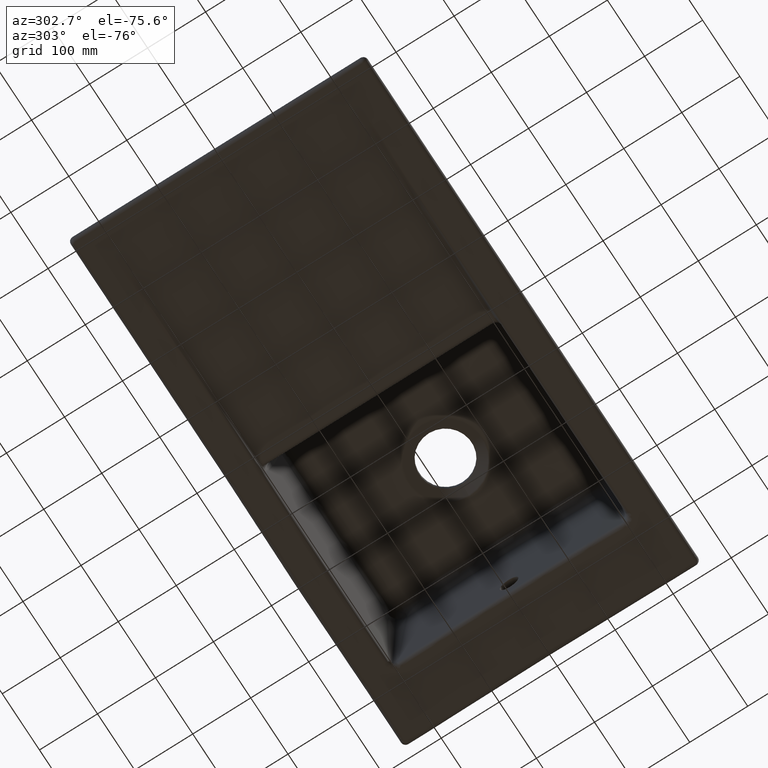
[diagram: clean part render]
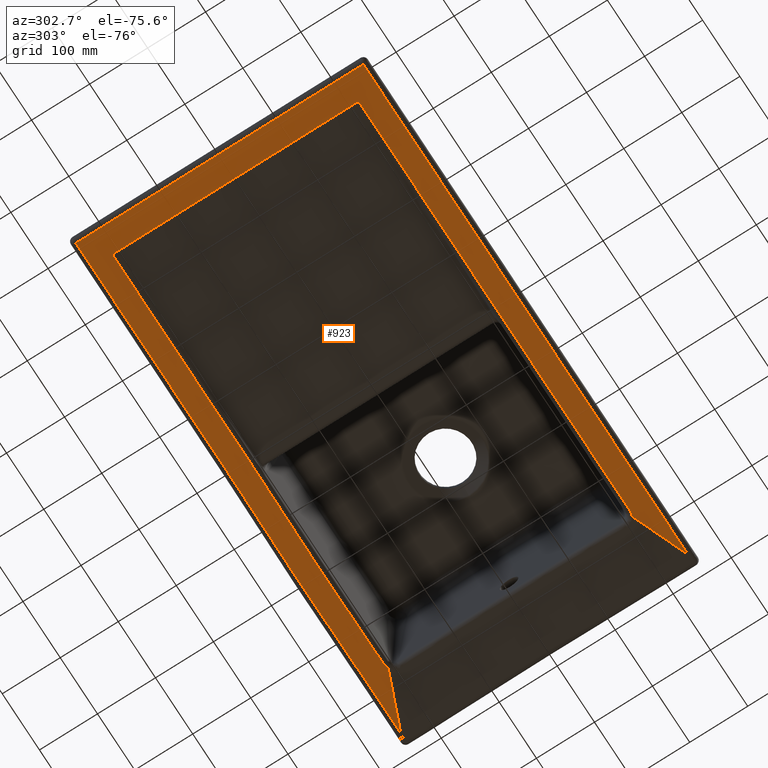
[diagram: same view with one face highlighted and labeled with its STEP entity id]
A machine part, auxiliary view. The second image highlights one B-rep face of the part: STEP entity #923.
In plain terms, the highlighted planar face has unit normal (0, 0, -1).
Its self-contained STEP definition (entity closure, byte-faithful):
#403=LINE('',#11913,#493);
#405=LINE('',#11919,#495);
#408=LINE('',#11937,#498);
#410=LINE('',#12379,#500);
#493=VECTOR('',#4963,1.);
#495=VECTOR('',#4969,1.);
#498=VECTOR('',#4974,1.);
#500=VECTOR('',#4996,1.);
#923=ADVANCED_FACE('',(#1226),#1001,.T.);
#1001=PLANE('',#4444);
#1226=FACE_OUTER_BOUND('',#1504,.T.);
#1504=EDGE_LOOP('',(#2618,#2619,#2620,#2621,#2622,#2623,#2624,#2625,#2626,
#2627,#2628,#2629,#2630,#2631,#2632,#2633,#2634,#2635,#2636,#2637));
#2618=ORIENTED_EDGE('',*,*,#3779,.F.);
#2619=ORIENTED_EDGE('',*,*,#3690,.T.);
#2620=ORIENTED_EDGE('',*,*,#3693,.T.);
#2621=ORIENTED_EDGE('',*,*,#3697,.T.);
#2622=ORIENTED_EDGE('',*,*,#3700,.T.);
#2623=ORIENTED_EDGE('',*,*,#3703,.T.);
#2624=ORIENTED_EDGE('',*,*,#3706,.T.);
#2625=ORIENTED_EDGE('',*,*,#3709,.T.);
#2626=ORIENTED_EDGE('',*,*,#3780,.F.);
#2627=ORIENTED_EDGE('',*,*,#3711,.T.);
#2628=ORIENTED_EDGE('',*,*,#3715,.T.);
#2629=ORIENTED_EDGE('',*,*,#3717,.T.);
#2630=ORIENTED_EDGE('',*,*,#3719,.T.);
#2631=ORIENTED_EDGE('',*,*,#3720,.T.);
#2632=ORIENTED_EDGE('',*,*,#3722,.T.);
#2633=ORIENTED_EDGE('',*,*,#3725,.T.);
#2634=ORIENTED_EDGE('',*,*,#3724,.T.);
#2635=ORIENTED_EDGE('',*,*,#3726,.T.);
#2636=ORIENTED_EDGE('',*,*,#3728,.T.);
#2637=ORIENTED_EDGE('',*,*,#3736,.T.);
#3095=VERTEX_POINT('',#11465);
#3100=VERTEX_POINT('',#11475);
#3125=VERTEX_POINT('',#11914);
#3128=VERTEX_POINT('',#11936);
#3130=VERTEX_POINT('',#11945);
#3132=VERTEX_POINT('',#11968);
#3134=VERTEX_POINT('',#11991);
#3136=VERTEX_POINT('',#12011);
#3137=VERTEX_POINT('',#12031);
#3138=VERTEX_POINT('',#12036);
#3140=VERTEX_POINT('',#12060);
#3141=VERTEX_POINT('',#12086);
#3142=VERTEX_POINT('',#12125);
#3143=VERTEX_POINT('',#12141);
#3144=VERTEX_POINT('',#12352);
#3145=VERTEX_POINT('',#12373);
#3146=VERTEX_POINT('',#12378);
#3147=VERTEX_POINT('',#12387);
#3148=VERTEX_POINT('',#12511);
#3152=VERTEX_POINT('',#12629);
#3690=EDGE_CURVE('',#3125,#3100,#403,.T.);
#3693=EDGE_CURVE('',#3100,#3095,#405,.T.);
#3697=EDGE_CURVE('',#3095,#3128,#408,.T.);
#3700=EDGE_CURVE('',#3128,#3130,#4083,.T.);
#3703=EDGE_CURVE('',#3130,#3132,#4085,.T.);
#3706=EDGE_CURVE('',#3132,#3134,#4087,.T.);
#3709=EDGE_CURVE('',#3134,#3136,#4088,.T.);
#3711=EDGE_CURVE('',#3138,#3137,#4089,.T.);
#3715=EDGE_CURVE('',#3137,#3140,#4091,.T.);
#3717=EDGE_CURVE('',#3140,#3141,#4092,.T.);
#3719=EDGE_CURVE('',#3141,#3142,#4094,.T.);
#3720=EDGE_CURVE('',#3142,#3143,#4095,.T.);
#3722=EDGE_CURVE('',#3143,#3144,#4097,.T.);
#3724=EDGE_CURVE('',#3146,#3145,#4099,.T.);
#3725=EDGE_CURVE('',#3144,#3146,#410,.T.);
#3726=EDGE_CURVE('',#3145,#3147,#4100,.T.);
#3728=EDGE_CURVE('',#3147,#3148,#4102,.T.);
#3736=EDGE_CURVE('',#3148,#3152,#4108,.T.);
#3779=EDGE_CURVE('',#3125,#3152,#4133,.T.);
#3780=EDGE_CURVE('',#3138,#3136,#4134,.T.);
#4083=B_SPLINE_CURVE_WITH_KNOTS('',3,(#11946,#11947,#11948,#11949),
 .UNSPECIFIED.,.F.,.F.,(4,4),(0.,1.),.UNSPECIFIED.);
#4085=B_SPLINE_CURVE_WITH_KNOTS('',3,(#11969,#11970,#11971,#11972),
 .UNSPECIFIED.,.F.,.F.,(4,4),(0.,1.),.UNSPECIFIED.);
#4087=B_SPLINE_CURVE_WITH_KNOTS('',3,(#11992,#11993,#11994,#11995),
 .UNSPECIFIED.,.F.,.F.,(4,4),(0.,1.),.UNSPECIFIED.);
#4088=B_SPLINE_CURVE_WITH_KNOTS('',3,(#12012,#12013,#12014,#12015,#12016,
#12017),.UNSPECIFIED.,.F.,.F.,(4,2,4),(0.,0.207457127268666,1.),
 .UNSPECIFIED.);
#4089=B_SPLINE_CURVE_WITH_KNOTS('',3,(#12032,#12033,#12034,#12035),
 .UNSPECIFIED.,.F.,.F.,(4,4),(0.,1.),.UNSPECIFIED.);
#4091=B_SPLINE_CURVE_WITH_KNOTS('',3,(#12061,#12062,#12063,#12064),
 .UNSPECIFIED.,.F.,.F.,(4,4),(0.,1.),.UNSPECIFIED.);
#4092=B_SPLINE_CURVE_WITH_KNOTS('',3,(#12087,#12088,#12089,#12090),
 .UNSPECIFIED.,.F.,.F.,(4,4),(0.,1.),.UNSPECIFIED.);
#4094=B_SPLINE_CURVE_WITH_KNOTS('',3,(#12126,#12127,#12128,#12129,#12130,
#12131,#12132,#12133,#12134,#12135),.UNSPECIFIED.,.F.,.F.,(4,2,2,2,4),(0.,
0.0426539444679291,0.213269722339646,0.895732833826515,1.),
 .UNSPECIFIED.);
#4095=B_SPLINE_CURVE_WITH_KNOTS('',3,(#12137,#12138,#12139,#12140),
 .UNSPECIFIED.,.F.,.F.,(4,4),(0.,1.),.UNSPECIFIED.);
#4097=B_SPLINE_CURVE_WITH_KNOTS('',3,(#12348,#12349,#12350,#12351),
 .UNSPECIFIED.,.F.,.F.,(4,4),(0.,1.),.UNSPECIFIED.);
#4099=B_SPLINE_CURVE_WITH_KNOTS('',3,(#12374,#12375,#12376,#12377),
 .UNSPECIFIED.,.F.,.F.,(4,4),(0.,1.),.UNSPECIFIED.);
#4100=B_SPLINE_CURVE_WITH_KNOTS('',3,(#12381,#12382,#12383,#12384,#12385,
#12386),.UNSPECIFIED.,.F.,.F.,(4,2,4),(0.,0.5,1.),.UNSPECIFIED.);
#4102=B_SPLINE_CURVE_WITH_KNOTS('',3,(#12501,#12502,#12503,#12504,#12505,
#12506,#12507,#12508,#12509,#12510),.UNSPECIFIED.,.F.,.F.,(4,2,2,2,4),(0.,
0.0217701268668864,0.109617323595765,0.461006110511282,1.),
 .UNSPECIFIED.);
#4108=B_SPLINE_CURVE_WITH_KNOTS('',3,(#12630,#12631,#12632,#12633),
 .UNSPECIFIED.,.F.,.F.,(4,4),(0.,1.),.UNSPECIFIED.);
#4133=B_SPLINE_CURVE_WITH_KNOTS('',3,(#13085,#13086,#13087,#13088,#13089,
#13090),.UNSPECIFIED.,.F.,.F.,(4,2,4),(0.,0.5,1.),.UNSPECIFIED.);
#4134=B_SPLINE_CURVE_WITH_KNOTS('',3,(#13091,#13092,#13093,#13094,#13095,
#13096,#13097,#13098,#13099,#13100,#13101,#13102,#13103,#13104,#13105,#13106,
#13107,#13108,#13109,#13110,#13111,#13112,#13113,#13114,#13115,#13116,#13117,
#13118,#13119,#13120,#13121,#13122,#13123,#13124,#13125,#13126,#13127,#13128,
#13129,#13130,#13131,#13132,#13133,#13134,#13135,#13136,#13137,#13138,#13139,
#13140,#13141,#13142),.UNSPECIFIED.,.F.,.F.,(4,1,1,1,2,2,2,2,2,2,2,2,1,
1,2,2,2,2,1,1,2,2,2,2,2,1,1,1,2,2,4),(0.,0.125000000000017,0.187500000000025,
0.218750000000028,0.23437500000003,0.250000000000031,0.375000000000045,
0.500000000000059,0.515625000000061,0.531250000000064,0.562500000000068,
0.593750000000073,0.609375000000076,0.617187500000077,0.621093750000078,
0.625000000000079,0.687500000000084,0.718750000000087,0.734375000000089,
0.742187500000089,0.746093750000089,0.75000000000009,0.812500000000099,
0.843750000000104,0.859375000000107,0.867187500000108,0.87109375000011,
0.873046875000109,0.874023437500109,0.875000000000109,1.),.UNSPECIFIED.);
#4444=AXIS2_PLACEMENT_3D('',#13143,#5047,#5048);
#4963=DIRECTION('',(-1.,0.,0.));
#4969=DIRECTION('',(-9.82547376793326E-11,1.,0.));
#4974=DIRECTION('',(1.,0.,0.));
#4996=DIRECTION('',(-5.03662152634792E-14,-1.,0.));
#5047=DIRECTION('',(0.,0.,-1.));
#5048=DIRECTION('',(0.870028328912697,-0.493001731122092,0.));
#11465=CARTESIAN_POINT('',(-606.796767667304,247.796767645616,-1.08650068109117E-11));
#11475=CARTESIAN_POINT('',(-606.796767652721,-247.796767645617,-5.1604794310289E-15));
#11913=CARTESIAN_POINT('',(-170.461947814605,-247.796767645616,1.74763987606068E-16));
#11914=CARTESIAN_POINT('',(265.87287201626,-247.796767645923,1.09099800341414E-8));
#11919=CARTESIAN_POINT('',(-606.796767698788,2.04697370165263E-13,0.));
#11936=CARTESIAN_POINT('',(-188.748510565341,247.796767647755,-2.60094046823505E-15));
#11937=CARTESIAN_POINT('',(-397.772639107017,247.796767645617,0.));
#11945=CARTESIAN_POINT('',(-164.794292248493,247.987133741153,2.08258394982279E-15));
#11946=CARTESIAN_POINT('',(-188.748510565341,247.796767645614,0.));
#11947=CARTESIAN_POINT('',(-180.763264596552,247.796774406367,0.));
#11948=CARTESIAN_POINT('',(-172.778525157593,247.860229770976,0.));
#11949=CARTESIAN_POINT('',(-164.794292248466,247.987133739441,0.));
#11968=CARTESIAN_POINT('',(164.794285938912,247.987133841391,-2.08080852959537E-15));
#11969=CARTESIAN_POINT('',(-164.794292248466,247.987133739441,0.));
#11970=CARTESIAN_POINT('',(-54.9314310254378,249.733409063785,0.));
#11971=CARTESIAN_POINT('',(54.9314283703462,249.733409097216,0.));
#11972=CARTESIAN_POINT('',(164.794285938886,247.987133839734,0.));
#11991=CARTESIAN_POINT('',(188.748503188458,247.796767647691,9.17385343005078E-17));
#11992=CARTESIAN_POINT('',(164.794285938886,247.987133839732,0.));
#11993=CARTESIAN_POINT('',(172.778522658183,247.860229807797,0.));
#11994=CARTESIAN_POINT('',(180.763261741373,247.796774409759,0.));
#11995=CARTESIAN_POINT('',(188.748503188458,247.796767645617,0.));
#12011=CARTESIAN_POINT('',(265.872872019034,247.796767646605,4.51127755737766E-8));
#12012=CARTESIAN_POINT('',(188.748503188458,247.796767645617,3.62655958276355E-16));
#12013=CARTESIAN_POINT('',(194.081836521791,247.796767645617,3.62655958276355E-16));
#12014=CARTESIAN_POINT('',(199.415169855125,247.79676764569,0.));
#12015=CARTESIAN_POINT('',(225.123292798649,247.796767646221,0.));
#12016=CARTESIAN_POINT('',(245.498082408841,247.796767647179,0.));
#12017=CARTESIAN_POINT('',(265.872872019032,247.796767646669,0.));
#12031=CARTESIAN_POINT('',(164.975707568251,212.513624922516,-1.27849630264831E-14));
#12032=CARTESIAN_POINT('',(173.550151550956,210.277554862312,0.));
#12033=CARTESIAN_POINT('',(170.915751938567,211.704382638158,0.));
#12034=CARTESIAN_POINT('',(167.978736000299,212.465674601262,0.));
#12035=CARTESIAN_POINT('',(164.97570755006,212.513624899196,0.));
#12036=CARTESIAN_POINT('',(173.550151550959,210.277554862312,1.39096537463598E-14));
#12060=CARTESIAN_POINT('',(-164.230616859715,212.525495142195,1.87350142075395E-14));
#12061=CARTESIAN_POINT('',(164.97570755005,212.51362489856,0.));
#12062=CARTESIAN_POINT('',(55.2403291159775,214.265802774322,0.));
#12063=CARTESIAN_POINT('',(-54.495112353793,214.26975951269,0.));
#12064=CARTESIAN_POINT('',(-164.230616859261,212.525495113664,0.));
#12086=CARTESIAN_POINT('',(-188.74850992772,212.330649392094,9.53299543373792E-16));
#12087=CARTESIAN_POINT('',(-164.230616859261,212.525495113659,0.));
#12088=CARTESIAN_POINT('',(-172.402731730375,212.39559796598,0.));
#12089=CARTESIAN_POINT('',(-180.575362753195,212.33064939214,0.));
#12090=CARTESIAN_POINT('',(-188.74850992772,212.33064939214,0.));
#12125=CARTESIAN_POINT('',(-563.860359478472,212.330649392259,5.86194847959425E-7));
#12126=CARTESIAN_POINT('',(-188.74850992772,212.33064939214,6.50121785945399E-15));
#12127=CARTESIAN_POINT('',(-194.081843261053,212.33064939214,6.50121785945399E-15));
#12128=CARTESIAN_POINT('',(-199.415176594387,212.330649392139,-6.04764452042231E-15));
#12129=CARTESIAN_POINT('',(-226.081843261053,212.330649392139,-6.04764452042231E-15));
#12130=CARTESIAN_POINT('',(-247.415176594387,212.33064939214,6.8036000854751E-15));
#12131=CARTESIAN_POINT('',(-354.081843261054,212.33064939214,6.8036000854751E-15));
#12132=CARTESIAN_POINT('',(-439.415176594387,212.330649392139,6.04764452042231E-16));
#12133=CARTESIAN_POINT('',(-537.785793111304,212.330649392139,6.04764452042231E-16));
#12134=CARTESIAN_POINT('',(-550.823076294888,212.330649392139,5.29168895536952E-16));
#12135=CARTESIAN_POINT('',(-563.860359478472,212.330649392139,5.29168895536952E-16));
#12137=CARTESIAN_POINT('',(-563.860359478472,212.330649392339,0.));
#12138=CARTESIAN_POINT('',(-563.952786059938,212.233942982,0.));
#12139=CARTESIAN_POINT('',(-563.998999414936,212.102554348854,0.));
#12140=CARTESIAN_POINT('',(-563.998999543465,211.936483492903,0.));
#12141=CARTESIAN_POINT('',(-563.999499700093,211.936130089194,8.73835036476516E-6));
#12348=CARTESIAN_POINT('',(-563.999999997898,211.93577658573,-3.45930378669655E-15));
#12349=CARTESIAN_POINT('',(-563.999999997897,209.623851057154,-1.01387636400611E-15));
#12350=CARTESIAN_POINT('',(-563.999999997897,207.311925528577,1.43155105868434E-15));
#12351=CARTESIAN_POINT('',(-563.999999997897,205.,3.87697848137478E-15));
#12352=CARTESIAN_POINT('',(-563.999999997895,205.,1.93848924068739E-15));
#12373=CARTESIAN_POINT('',(-563.999416013463,-211.936189099106,1.02007363200407E-5));
#12374=CARTESIAN_POINT('',(-563.999999997898,-205.,0.));
#12375=CARTESIAN_POINT('',(-563.999999997898,-207.311925528577,0.));
#12376=CARTESIAN_POINT('',(-563.999999997897,-209.623851057154,0.));
#12377=CARTESIAN_POINT('',(-563.999999997897,-211.93577658573,0.));
#12378=CARTESIAN_POINT('',(-563.999999997906,-205.,0.));
#12379=CARTESIAN_POINT('',(-563.999999997903,-8.59035065303715E-12,0.));
#12381=CARTESIAN_POINT('',(-563.998832266334,-211.936601444857,0.));
#12382=CARTESIAN_POINT('',(-564.005886067429,-211.949972810827,0.));
#12383=CARTESIAN_POINT('',(-563.99134297919,-212.077265820045,0.));
#12384=CARTESIAN_POINT('',(-563.94631985724,-212.21744163208,0.));
#12385=CARTESIAN_POINT('',(-563.910162543992,-212.278540187521,0.));
#12386=CARTESIAN_POINT('',(-563.860359478472,-212.330649392386,0.));
#12387=CARTESIAN_POINT('',(-563.860359478472,-212.330649392287,6.52658758866952E-7));
#12501=CARTESIAN_POINT('',(-563.860359478472,-212.33064939214,4.08216005128506E-15));
#12502=CARTESIAN_POINT('',(-558.573572984947,-212.33064939214,4.08216005128506E-15));
#12503=CARTESIAN_POINT('',(-553.286786491422,-212.330649392139,3.47739559924283E-15));
#12504=CARTESIAN_POINT('',(-526.666666664564,-212.330649392139,3.47739559924283E-15));
#12505=CARTESIAN_POINT('',(-505.333333331231,-212.330649392139,1.0583377910739E-15));
#12506=CARTESIAN_POINT('',(-398.666666664564,-212.330649392139,1.0583377910739E-15));
#12507=CARTESIAN_POINT('',(-313.333333331231,-212.330649392139,1.0583377910739E-15));
#12508=CARTESIAN_POINT('',(-97.1075328816121,-212.330649392139,1.0583377910739E-15));
#12509=CARTESIAN_POINT('',(33.7849342346734,-212.330649392139,-1.88988891263197E-15));
#12510=CARTESIAN_POINT('',(164.677401350959,-212.330649392139,-1.88988891263197E-15));
#12511=CARTESIAN_POINT('',(164.677126036392,-212.330616363648,6.85034948678291E-11));
#12629=CARTESIAN_POINT('',(173.357096524051,-210.195517262524,-1.28059835750253E-14));
#12630=CARTESIAN_POINT('',(164.677401350957,-212.330649355003,0.));
#12631=CARTESIAN_POINT('',(167.705453540519,-212.33045956173,0.));
#12632=CARTESIAN_POINT('',(170.681812977966,-211.60388018895,0.));
#12633=CARTESIAN_POINT('',(173.357096524051,-210.195517262525,0.));
#13085=CARTESIAN_POINT('',(265.872872016235,-247.796767645709,1.11021723142687E-13));
#13086=CARTESIAN_POINT('',(250.281161082164,-241.975183790804,1.11021723142687E-13));
#13087=CARTESIAN_POINT('',(234.829312147404,-235.781301911778,-5.55095108425773E-14));
#13088=CARTESIAN_POINT('',(204.023828661372,-223.155325962742,-5.55095108425773E-14));
#13089=CARTESIAN_POINT('',(188.677514457499,-216.70617124745,-5.55082665561329E-14));
#13090=CARTESIAN_POINT('',(173.357096524052,-210.195517262524,-5.55082665561329E-14));
#13091=CARTESIAN_POINT('',(173.550151550964,210.277554862309,1.79655567874597E-13));
#13092=CARTESIAN_POINT('',(177.372284457736,211.901664796402,3.68982772006542E-12));
#13093=CARTESIAN_POINT('',(183.107881959766,214.332098964934,8.72130575953853E-11));
#13094=CARTESIAN_POINT('',(189.804902757653,217.154438670962,3.33962985953633E-10));
#13095=CARTESIAN_POINT('',(193.154947331005,218.561924845169,4.79674388566706E-10));
#13096=CARTESIAN_POINT('',(194.591026778942,219.164301859508,5.4508318633954E-10));
#13097=CARTESIAN_POINT('',(195.548491902333,219.565697127946,5.89105890073948E-10));
#13098=CARTESIAN_POINT('',(195.977920714236,219.745637276816,6.09029311659467E-10));
#13099=CARTESIAN_POINT('',(200.731320303482,221.736155360139,8.30418862170109E-10));
#13100=CARTESIAN_POINT('',(204.762315430967,223.415354610588,8.04731293739114E-10));
#13101=CARTESIAN_POINT('',(212.435130567047,226.595064505864,4.45630738410038E-10));
#13102=CARTESIAN_POINT('',(216.106801145733,228.107823148139,1.31976702638445E-10));
#13103=CARTESIAN_POINT('',(219.95072404499,229.68312246361,1.73501475458306E-11));
#13104=CARTESIAN_POINT('',(220.404478530873,229.868972414692,2.68563898819292E-12));
#13105=CARTESIAN_POINT('',(221.365329000424,230.262215224835,-1.18436182022823E-11));
#13106=CARTESIAN_POINT('',(221.909048979049,230.484573125483,-1.33461501335701E-11));
#13107=CARTESIAN_POINT('',(223.400541945156,231.094015170951,2.02279069935526E-11));
#13108=CARTESIAN_POINT('',(224.368544846018,231.48888560893,-4.39319576061217E-11));
#13109=CARTESIAN_POINT('',(226.211626894134,232.239504814207,-6.15423638003384E-10));
#13110=CARTESIAN_POINT('',(227.153373191604,232.622416637173,-1.118603439759E-9));
#13111=CARTESIAN_POINT('',(228.596375541268,233.207988901444,-1.68429575579029E-9));
#13112=CARTESIAN_POINT('',(229.325472606371,233.503575711374,-1.90898334093987E-9));
#13113=CARTESIAN_POINT('',(230.189396868135,233.853279691988,-1.8512370034421E-9));
#13114=CARTESIAN_POINT('',(230.562504556303,234.004187162806,-1.72868936533329E-9));
#13115=CARTESIAN_POINT('',(230.81187756726,234.105021371904,-1.62189451813407E-9));
#13116=CARTESIAN_POINT('',(230.965225506978,234.167007809778,-1.53781761704918E-9));
#13117=CARTESIAN_POINT('',(232.613834801182,234.833259900481,-4.82428339545007E-10));
#13118=CARTESIAN_POINT('',(234.35291149102,235.53398882077,2.57808129420601E-9));
#13119=CARTESIAN_POINT('',(237.243807977644,236.692671639,2.07773519680514E-8));
#13120=CARTESIAN_POINT('',(238.254491848284,237.09681783861,2.91710157487352E-8));
#13121=CARTESIAN_POINT('',(239.841284745033,237.729414682216,4.67349742081773E-8));
#13122=CARTESIAN_POINT('',(240.652373545732,238.052305912031,5.67588791463718E-8));
#13123=CARTESIAN_POINT('',(241.62965343997,238.440422450302,7.08921844357037E-8));
#13124=CARTESIAN_POINT('',(242.055138195802,238.609188258695,7.74928671580298E-8));
#13125=CARTESIAN_POINT('',(242.340273227414,238.722237140761,8.20160457596856E-8));
#13126=CARTESIAN_POINT('',(242.433415290811,238.759158715907,8.35083772532803E-8));
#13127=CARTESIAN_POINT('',(245.735003670159,240.067036149587,1.38177199957497E-7));
#13128=CARTESIAN_POINT('',(248.257564626027,241.055079867287,1.9517141622961E-7));
#13129=CARTESIAN_POINT('',(251.159189056653,242.185809231801,2.54555775767231E-7));
#13130=CARTESIAN_POINT('',(251.979367231806,242.504150143466,2.70554380182849E-7));
#13131=CARTESIAN_POINT('',(252.988600699203,242.895097548969,2.88566441980646E-7));
#13132=CARTESIAN_POINT('',(253.288174247093,243.010982511826,2.9359375535625E-7));
#13133=CARTESIAN_POINT('',(253.682230950638,243.163288582347,2.99757763506556E-7));
#13134=CARTESIAN_POINT('',(253.865433555972,243.234060858966,3.02496300527755E-7));
#13135=CARTESIAN_POINT('',(254.054966287046,243.307234923708,3.05114390885485E-7));
#13136=CARTESIAN_POINT('',(254.143680804635,243.341476042199,3.06282335218685E-7));
#13137=CARTESIAN_POINT('',(254.1804043906,243.355648368477,3.06752972736095E-7));
#13138=CARTESIAN_POINT('',(254.204598566046,243.364984960503,3.07060120493824E-7));
#13139=CARTESIAN_POINT('',(254.189867581561,243.359300910448,3.06878262156706E-7));
#13140=CARTESIAN_POINT('',(259.155442908014,245.275365964798,3.68683220637169E-7));
#13141=CARTESIAN_POINT('',(263.040804831801,246.739339332199,2.55794276540559E-7));
#13142=CARTESIAN_POINT('',(265.872872019031,247.796767646671,1.35338318301091E-7));
#13143=CARTESIAN_POINT('',(-418.379800177411,705.136217556429,0.));